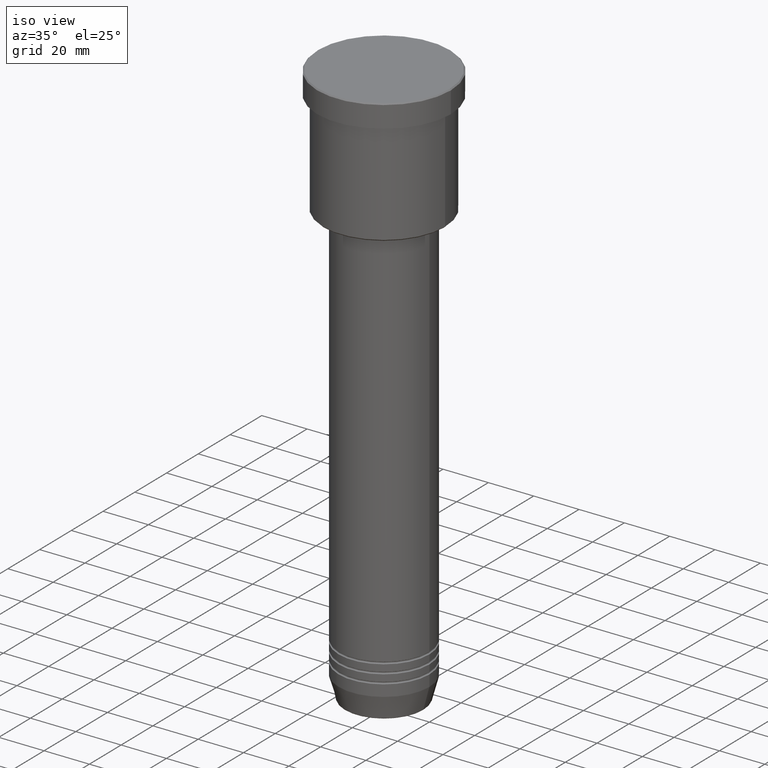
[diagram: clean part render]
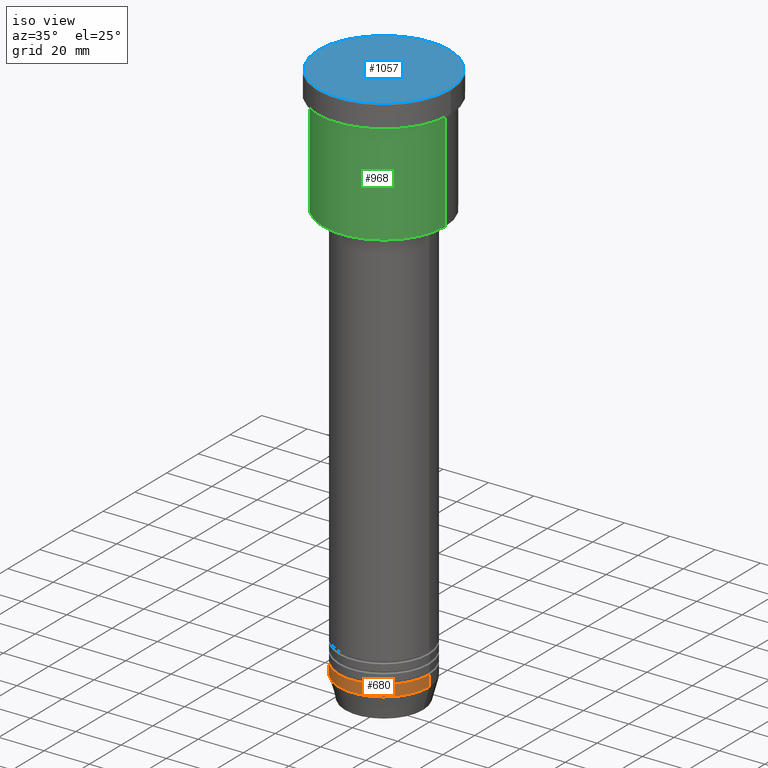
[diagram: same view with three faces highlighted in distinct colors, each labeled with its STEP entity id]
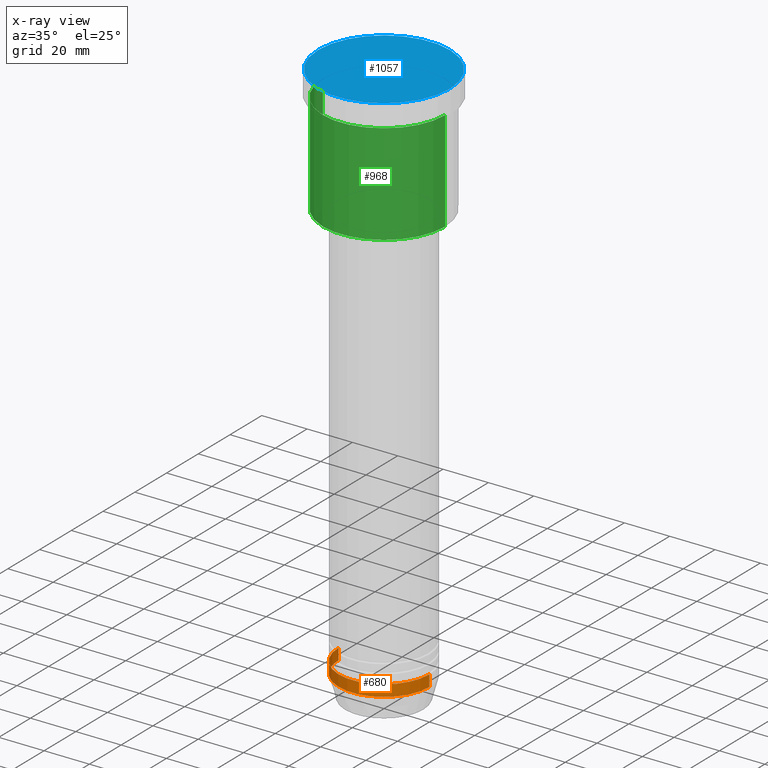
[diagram: x-ray of the same camera — body ghosted, the three highlighted faces saturated]
A machine part, iso view with three faces highlighted in distinct colors.
The next image is the same camera in x-ray (body ghosted, the three faces saturated) — at least one of them is partly hidden behind the body in this view.
Their STEP definitions:

[orange] entity #680 — the highlighted cylindrical surface (partial cylindrical patch) has radius 20 mm, axis along (-0, -0, 1).
#77 = LINE ( 'NONE', #800, #402 ) ;
#111 = AXIS2_PLACEMENT_3D ( 'NONE', #1045, #1162, #354 ) ;
#125 = CARTESIAN_POINT ( 'NONE',  ( -20.00000000000000000, 2.449293598294706513E-15, -241.0000000000000000 ) ) ;
#163 = CYLINDRICAL_SURFACE ( 'NONE', #985, 20.00000000000000000 ) ;
#207 = VERTEX_POINT ( 'NONE', #1147 ) ;
#245 = AXIS2_PLACEMENT_3D ( 'NONE', #820, #1016, #1111 ) ;
#304 = ORIENTED_EDGE ( 'NONE', *, *, #505, .T. ) ;
#310 = VECTOR ( 'NONE', #764, 1000.000000000000000 ) ;
#348 = DIRECTION ( 'NONE',  ( -0.000000000000000000, -0.000000000000000000, 1.000000000000000000 ) ) ;
#354 = DIRECTION ( 'NONE',  ( 1.000000000000000000, 0.000000000000000000, 0.000000000000000000 ) ) ;
#402 = VECTOR ( 'NONE', #348, 1000.000000000000000 ) ;
#446 = VERTEX_POINT ( 'NONE', #553 ) ;
#505 = EDGE_CURVE ( 'NONE', #446, #207, #955, .T. ) ;
#553 = CARTESIAN_POINT ( 'NONE',  ( 20.00000000000000000, 0.000000000000000000, -241.0000000000000000 ) ) ;
#595 = CIRCLE ( 'NONE', #245, 20.00000000000000000 ) ;
#613 = CIRCLE ( 'NONE', #111, 20.00000000000000000 ) ;
#641 = EDGE_CURVE ( 'NONE', #1014, #446, #613, .T. ) ;
#646 = CARTESIAN_POINT ( 'NONE',  ( -20.00000000000000000, 2.449293598294706513E-15, -236.0000000000000284 ) ) ;
#648 = EDGE_CURVE ( 'NONE', #1014, #793, #77, .T. ) ;
#680 = ADVANCED_FACE ( 'NONE', ( #875 ), #163, .T. ) ;
#714 = ORIENTED_EDGE ( 'NONE', *, *, #648, .F. ) ;
#764 = DIRECTION ( 'NONE',  ( -0.000000000000000000, -0.000000000000000000, 1.000000000000000000 ) ) ;
#783 = DIRECTION ( 'NONE',  ( 1.000000000000000000, 0.000000000000000000, 0.000000000000000000 ) ) ;
#793 = VERTEX_POINT ( 'NONE', #646 ) ;
#800 = CARTESIAN_POINT ( 'NONE',  ( -20.00000000000000000, 2.449293598294706513E-15, 0.000000000000000000 ) ) ;
#820 = CARTESIAN_POINT ( 'NONE',  ( 0.000000000000000000, 0.000000000000000000, -236.0000000000000284 ) ) ;
#855 = EDGE_CURVE ( 'NONE', #793, #207, #595, .T. ) ;
#875 = FACE_OUTER_BOUND ( 'NONE', #1059, .T. ) ;
#881 = DIRECTION ( 'NONE',  ( -0.000000000000000000, -0.000000000000000000, 1.000000000000000000 ) ) ;
#955 = LINE ( 'NONE', #1050, #310 ) ;
#985 = AXIS2_PLACEMENT_3D ( 'NONE', #1074, #881, #783 ) ;
#1014 = VERTEX_POINT ( 'NONE', #125 ) ;
#1016 = DIRECTION ( 'NONE',  ( -0.000000000000000000, -0.000000000000000000, 1.000000000000000000 ) ) ;
#1020 = ORIENTED_EDGE ( 'NONE', *, *, #641, .T. ) ;
#1045 = CARTESIAN_POINT ( 'NONE',  ( 0.000000000000000000, 0.000000000000000000, -241.0000000000000000 ) ) ;
#1050 = CARTESIAN_POINT ( 'NONE',  ( 20.00000000000000000, 0.000000000000000000, 0.000000000000000000 ) ) ;
#1059 = EDGE_LOOP ( 'NONE', ( #714, #1020, #304, #1114 ) ) ;
#1074 = CARTESIAN_POINT ( 'NONE',  ( 0.000000000000000000, 0.000000000000000000, 0.000000000000000000 ) ) ;
#1111 = DIRECTION ( 'NONE',  ( 1.000000000000000000, 0.000000000000000000, 0.000000000000000000 ) ) ;
#1114 = ORIENTED_EDGE ( 'NONE', *, *, #855, .F. ) ;
#1147 = CARTESIAN_POINT ( 'NONE',  ( 20.00000000000000000, 0.000000000000000000, -236.0000000000000284 ) ) ;
#1162 = DIRECTION ( 'NONE',  ( -0.000000000000000000, -0.000000000000000000, 1.000000000000000000 ) ) ;

[blue] entity #1057 — the highlighted planar face has unit normal (0, -0, 1).
#1 = AXIS2_PLACEMENT_3D ( 'NONE', #41, #949, #944 ) ;
#41 = CARTESIAN_POINT ( 'NONE',  ( 0.000000000000000000, 0.000000000000000000, 0.000000000000000000 ) ) ;
#106 = CARTESIAN_POINT ( 'NONE',  ( -28.99999999999997158, 0.000000000000000000, 0.000000000000000000 ) ) ;
#127 = ORIENTED_EDGE ( 'NONE', *, *, #441, .T. ) ;
#164 = DIRECTION ( 'NONE',  ( -0.000000000000000000, -0.000000000000000000, 1.000000000000000000 ) ) ;
#175 = AXIS2_PLACEMENT_3D ( 'NONE', #1065, #164, #792 ) ;
#216 = EDGE_CURVE ( 'NONE', #427, #599, #494, .T. ) ;
#282 = DIRECTION ( 'NONE',  ( -0.000000000000000000, -0.000000000000000000, 1.000000000000000000 ) ) ;
#379 = CARTESIAN_POINT ( 'NONE',  ( 0.000000000000000000, 0.000000000000000000, 0.000000000000000000 ) ) ;
#427 = VERTEX_POINT ( 'NONE', #106 ) ;
#441 = EDGE_CURVE ( 'NONE', #599, #427, #1138, .T. ) ;
#494 = CIRCLE ( 'NONE', #175, 28.99999999999997158 ) ;
#549 = ORIENTED_EDGE ( 'NONE', *, *, #216, .T. ) ;
#569 = FACE_OUTER_BOUND ( 'NONE', #1182, .T. ) ;
#594 = CARTESIAN_POINT ( 'NONE',  ( 28.99999999999997158, 3.582091887506006239E-15, 0.000000000000000000 ) ) ;
#599 = VERTEX_POINT ( 'NONE', #594 ) ;
#618 = AXIS2_PLACEMENT_3D ( 'NONE', #379, #282, #703 ) ;
#703 = DIRECTION ( 'NONE',  ( 1.000000000000000000, 0.000000000000000000, 0.000000000000000000 ) ) ;
#792 = DIRECTION ( 'NONE',  ( 1.000000000000000000, 0.000000000000000000, 0.000000000000000000 ) ) ;
#944 = DIRECTION ( 'NONE',  ( 1.000000000000000000, 0.000000000000000000, 0.000000000000000000 ) ) ;
#949 = DIRECTION ( 'NONE',  ( 0.000000000000000000, -0.000000000000000000, 1.000000000000000000 ) ) ;
#1057 = ADVANCED_FACE ( 'NONE', ( #569 ), #1128, .T. ) ;
#1065 = CARTESIAN_POINT ( 'NONE',  ( 0.000000000000000000, 0.000000000000000000, 0.000000000000000000 ) ) ;
#1128 = PLANE ( 'NONE',  #1 ) ;
#1138 = CIRCLE ( 'NONE', #618, 28.99999999999997158 ) ;
#1182 = EDGE_LOOP ( 'NONE', ( #549, #127 ) ) ;

[green] entity #968 — the highlighted cylindrical surface (partial cylindrical patch) has radius 27 mm, axis along (-0, -0, 1).
#42 = EDGE_CURVE ( 'NONE', #186, #960, #1083, .T. ) ;
#60 = CARTESIAN_POINT ( 'NONE',  ( -27.00000000000000355, 3.306546357697854128E-15, -55.50000000000002132 ) ) ;
#72 = DIRECTION ( 'NONE',  ( 1.000000000000000000, 0.000000000000000000, 0.000000000000000000 ) ) ;
#114 = AXIS2_PLACEMENT_3D ( 'NONE', #460, #615, #1075 ) ;
#148 = DIRECTION ( 'NONE',  ( 1.000000000000000000, 0.000000000000000000, 0.000000000000000000 ) ) ;
#186 = VERTEX_POINT ( 'NONE', #319 ) ;
#187 = DIRECTION ( 'NONE',  ( -0.000000000000000000, -0.000000000000000000, 1.000000000000000000 ) ) ;
#225 = AXIS2_PLACEMENT_3D ( 'NONE', #432, #187, #72 ) ;
#237 = CYLINDRICAL_SURFACE ( 'NONE', #284, 27.00000000000000355 ) ;
#284 = AXIS2_PLACEMENT_3D ( 'NONE', #582, #413, #148 ) ;
#319 = CARTESIAN_POINT ( 'NONE',  ( 27.00000000000000355, 0.000000000000000000, -55.50000000000002132 ) ) ;
#370 = EDGE_CURVE ( 'NONE', #650, #186, #846, .T. ) ;
#371 = ORIENTED_EDGE ( 'NONE', *, *, #1080, .F. ) ;
#413 = DIRECTION ( 'NONE',  ( -0.000000000000000000, -0.000000000000000000, 1.000000000000000000 ) ) ;
#432 = CARTESIAN_POINT ( 'NONE',  ( 0.000000000000000000, 0.000000000000000000, -10.99999999999999289 ) ) ;
#460 = CARTESIAN_POINT ( 'NONE',  ( 0.000000000000000000, 0.000000000000000000, -55.50000000000002132 ) ) ;
#543 = DIRECTION ( 'NONE',  ( -0.000000000000000000, -0.000000000000000000, 1.000000000000000000 ) ) ;
#582 = CARTESIAN_POINT ( 'NONE',  ( 0.000000000000000000, 0.000000000000000000, 0.000000000000000000 ) ) ;
#615 = DIRECTION ( 'NONE',  ( -0.000000000000000000, -0.000000000000000000, 1.000000000000000000 ) ) ;
#650 = VERTEX_POINT ( 'NONE', #60 ) ;
#651 = EDGE_LOOP ( 'NONE', ( #371, #868, #1042, #948 ) ) ;
#664 = LINE ( 'NONE', #860, #1033 ) ;
#724 = EDGE_CURVE ( 'NONE', #998, #960, #1175, .T. ) ;
#846 = CIRCLE ( 'NONE', #114, 27.00000000000000355 ) ;
#851 = FACE_OUTER_BOUND ( 'NONE', #651, .T. ) ;
#860 = CARTESIAN_POINT ( 'NONE',  ( -27.00000000000000355, 3.306546357697854128E-15, 0.000000000000000000 ) ) ;
#868 = ORIENTED_EDGE ( 'NONE', *, *, #370, .T. ) ;
#894 = DIRECTION ( 'NONE',  ( -0.000000000000000000, -0.000000000000000000, 1.000000000000000000 ) ) ;
#906 = CARTESIAN_POINT ( 'NONE',  ( 27.00000000000000355, 0.000000000000000000, 0.000000000000000000 ) ) ;
#948 = ORIENTED_EDGE ( 'NONE', *, *, #724, .F. ) ;
#960 = VERTEX_POINT ( 'NONE', #1048 ) ;
#968 = ADVANCED_FACE ( 'NONE', ( #851 ), #237, .T. ) ;
#998 = VERTEX_POINT ( 'NONE', #1039 ) ;
#1027 = VECTOR ( 'NONE', #543, 1000.000000000000000 ) ;
#1033 = VECTOR ( 'NONE', #894, 1000.000000000000000 ) ;
#1039 = CARTESIAN_POINT ( 'NONE',  ( -27.00000000000000355, 3.306546357697854128E-15, -10.99999999999999289 ) ) ;
#1042 = ORIENTED_EDGE ( 'NONE', *, *, #42, .T. ) ;
#1048 = CARTESIAN_POINT ( 'NONE',  ( 27.00000000000000355, 0.000000000000000000, -10.99999999999999289 ) ) ;
#1075 = DIRECTION ( 'NONE',  ( -1.000000000000000000, 0.000000000000000000, 0.000000000000000000 ) ) ;
#1080 = EDGE_CURVE ( 'NONE', #650, #998, #664, .T. ) ;
#1083 = LINE ( 'NONE', #906, #1027 ) ;
#1175 = CIRCLE ( 'NONE', #225, 27.00000000000000355 ) ;